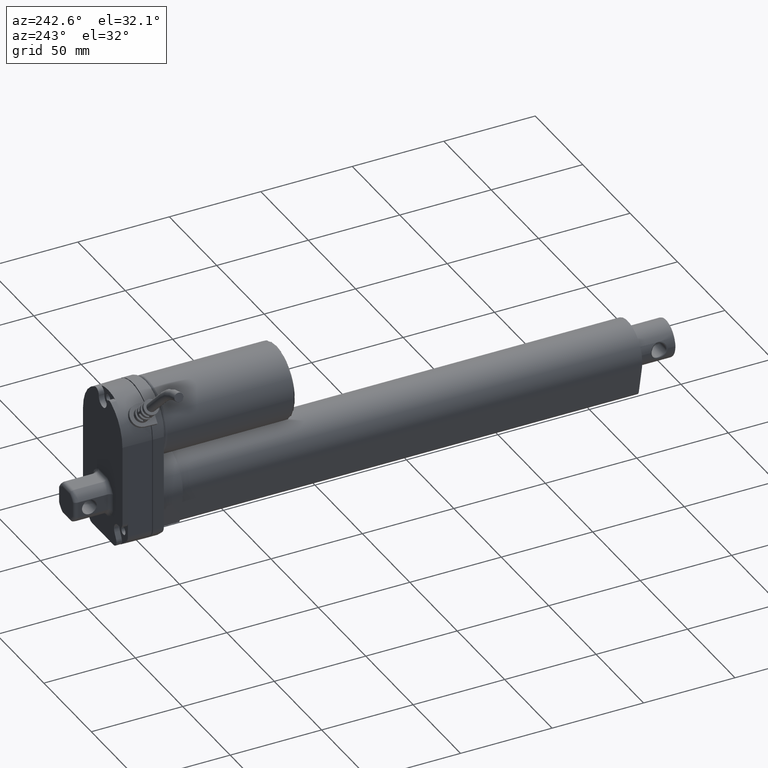
[diagram: clean part render]
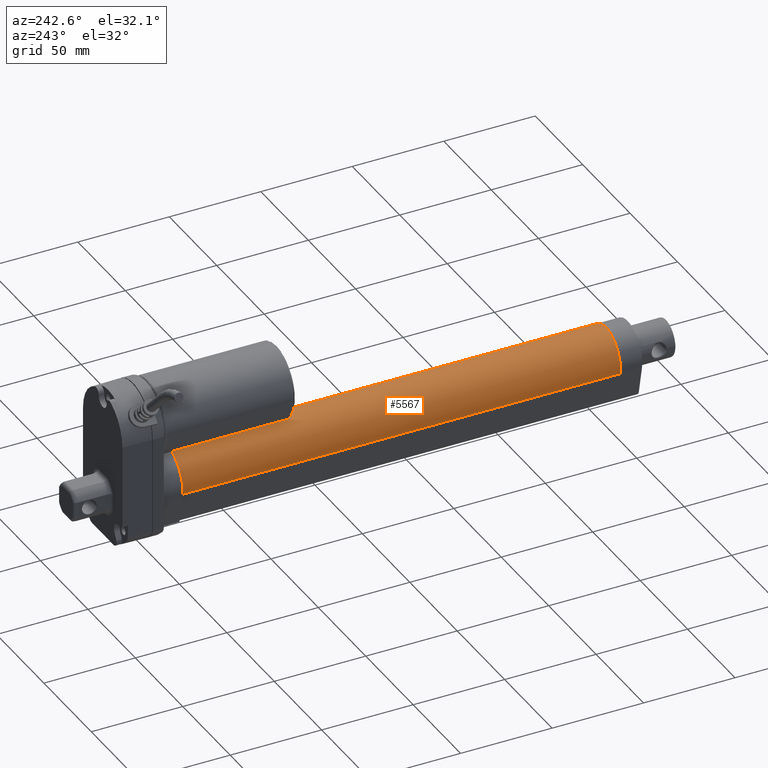
[diagram: same view with one face highlighted and labeled with its STEP entity id]
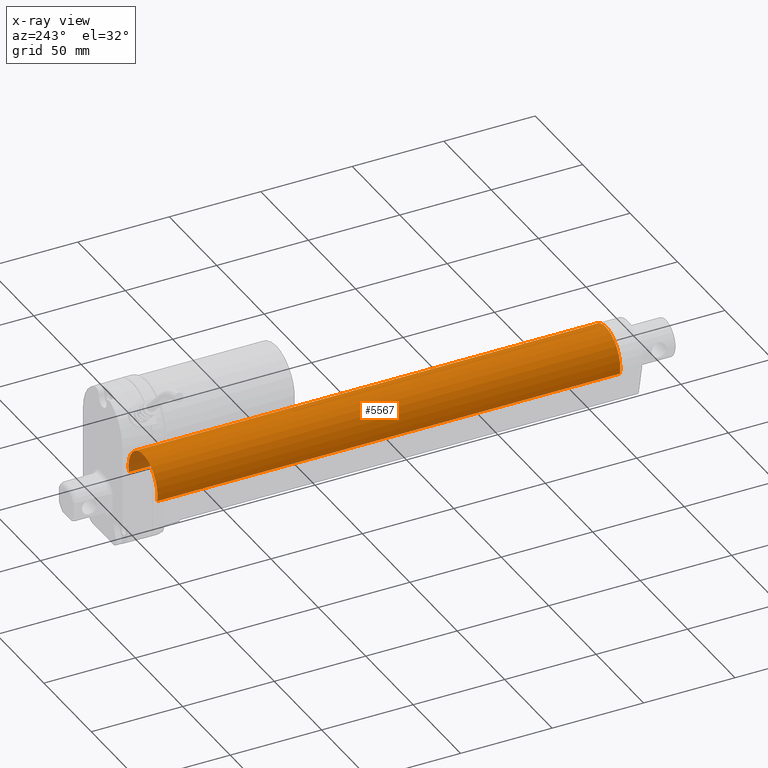
[diagram: x-ray of the same camera — body ghosted, the highlighted face saturated]
A machine part, auxiliary view. The second image highlights one B-rep face of the part: STEP entity #5567.
The next image is the same camera in x-ray: the body ghosted, the highlighted face saturated — about 1% of this face is hidden behind the body in this view.
In plain terms, the highlighted cylindrical surface (edge-blend (fillet) strip) has radius 15.25 mm, axis along (0, -1, 0).
Its self-contained STEP definition (entity closure, byte-faithful):
#517=LINE('',#8808,#974);
#518=LINE('',#8812,#975);
#974=VECTOR('',#7138,1000.);
#975=VECTOR('',#7141,1000.);
#1841=ORIENTED_EDGE('',*,*,#3176,.T.);
#1842=ORIENTED_EDGE('',*,*,#3177,.T.);
#1843=ORIENTED_EDGE('',*,*,#3178,.F.);
#1844=ORIENTED_EDGE('',*,*,#3179,.F.);
#3176=EDGE_CURVE('',#3895,#3896,#4351,.T.);
#3177=EDGE_CURVE('',#3896,#3897,#517,.T.);
#3178=EDGE_CURVE('',#3898,#3897,#4352,.T.);
#3179=EDGE_CURVE('',#3895,#3898,#518,.T.);
#3895=VERTEX_POINT('',#8806);
#3896=VERTEX_POINT('',#8807);
#3897=VERTEX_POINT('',#8809);
#3898=VERTEX_POINT('',#8811);
#4351=CIRCLE('',#6098,15.25);
#4352=CIRCLE('',#6099,15.2499999999979);
#4661=EDGE_LOOP('',(#1841,#1842,#1843,#1844));
#5060=FACE_BOUND('',#4661,.T.);
#5374=CYLINDRICAL_SURFACE('',#6097,15.25);
#5567=ADVANCED_FACE('',(#5060),#5374,.T.);
#6097=AXIS2_PLACEMENT_3D('',#8804,#7134,#7135);
#6098=AXIS2_PLACEMENT_3D('',#8805,#7136,#7137);
#6099=AXIS2_PLACEMENT_3D('',#8810,#7139,#7140);
#7134=DIRECTION('',(1.,0.,0.));
#7135=DIRECTION('',(0.,0.,-1.));
#7136=DIRECTION('',(1.,0.,0.));
#7137=DIRECTION('',(0.,0.,-1.));
#7138=DIRECTION('',(1.,0.,0.));
#7139=DIRECTION('',(1.,0.,0.));
#7140=DIRECTION('',(0.,0.,-1.));
#7141=DIRECTION('',(1.,0.,0.));
#8804=CARTESIAN_POINT('',(0.,0.,0.));
#8805=CARTESIAN_POINT('',(0.,0.,0.));
#8806=CARTESIAN_POINT('',(0.,-3.17065328496843,-14.9167509111896));
#8807=CARTESIAN_POINT('',(-7.80625564189563E-15,-3.17065328496814,14.9167509111882));
#8808=CARTESIAN_POINT('',(101.,-3.17065328497051,14.9167509111877));
#8809=CARTESIAN_POINT('',(253.,-3.17065328496814,14.9167509111882));
#8810=CARTESIAN_POINT('',(253.,0.,0.));
#8811=CARTESIAN_POINT('',(253.,-3.17065328496843,-14.9167509111896));
#8812=CARTESIAN_POINT('',(101.,-3.1706532849711,-14.9167509111905));